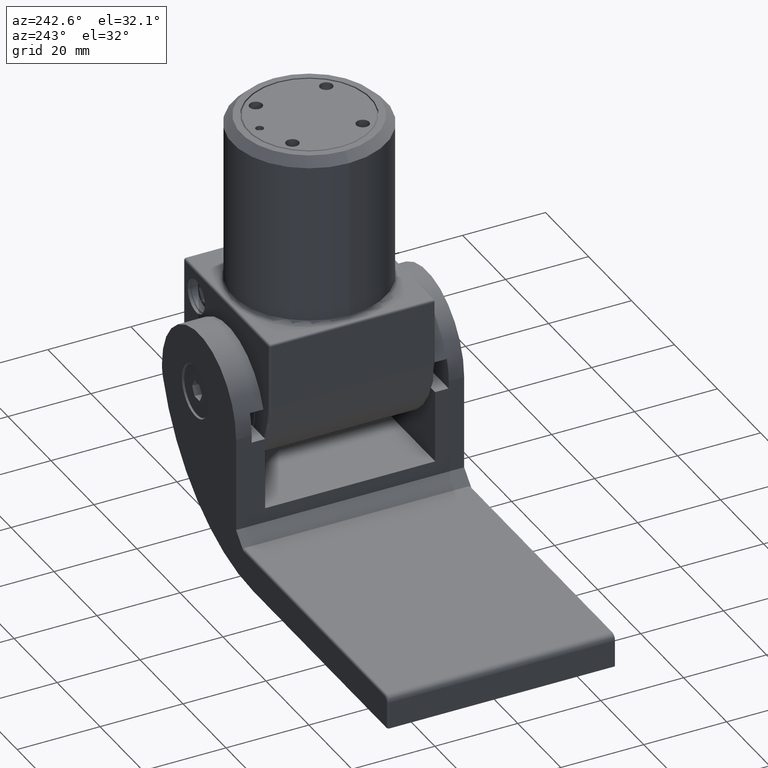
[diagram: clean part render]
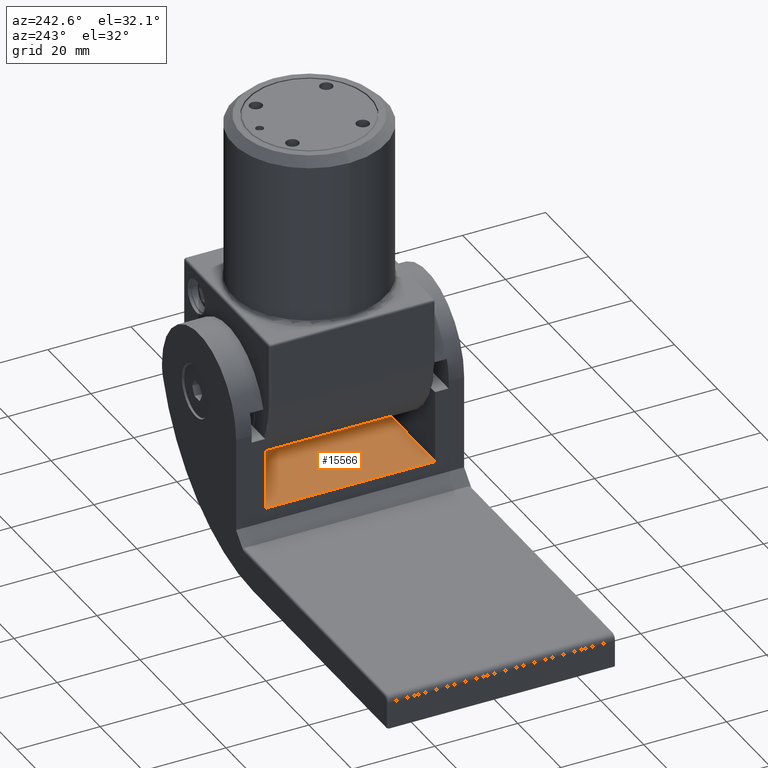
[diagram: same view with one face highlighted and labeled with its STEP entity id]
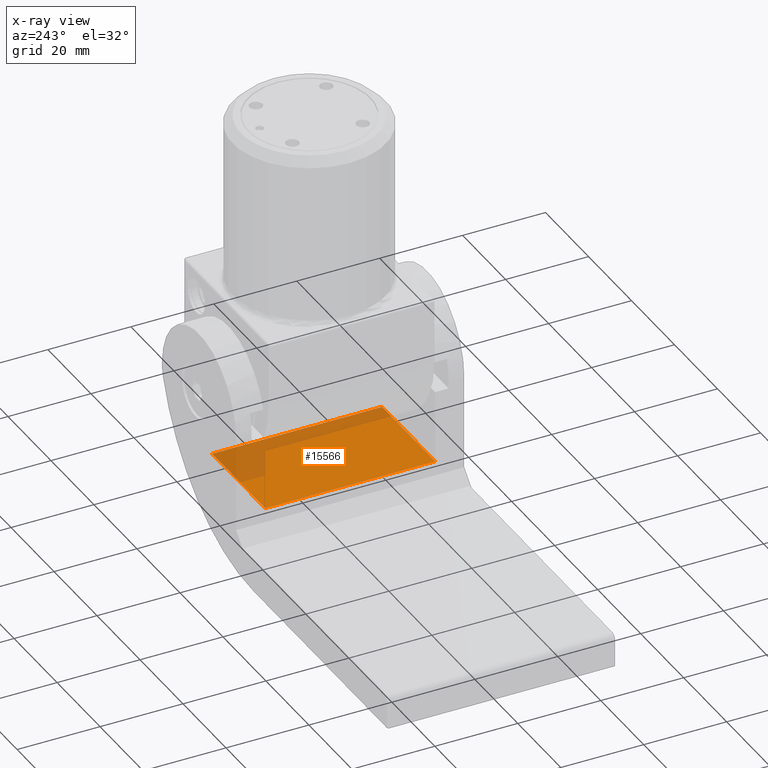
[diagram: x-ray of the same camera — body ghosted, the highlighted face saturated]
A machine part, auxiliary view. The second image highlights one B-rep face of the part: STEP entity #15566.
The next image is the same camera in x-ray: the body ghosted, the highlighted face saturated — about 24% of this face is hidden behind the body in this view.
In plain terms, the highlighted planar face has unit normal (0, 0, -1).
Its self-contained STEP definition (entity closure, byte-faithful):
#1584 = ORIENTED_EDGE ( 'NONE', *, *, #14227, .T. ) ;
#1925 = FACE_OUTER_BOUND ( 'NONE', #17604, .T. ) ;
#2265 = AXIS2_PLACEMENT_3D ( 'NONE', #6253, #2797, #10819 ) ;
#2797 = DIRECTION ( 'NONE',  ( 0.000000000000000000, 0.000000000000000000, -1.000000000000000000 ) ) ;
#3565 = CARTESIAN_POINT ( 'NONE',  ( 17.99999999999999289, -20.50000000000000000, -10.99999999999999645 ) ) ;
#3731 = VECTOR ( 'NONE', #6255, 1000.000000000000000 ) ;
#4432 = VERTEX_POINT ( 'NONE', #19042 ) ;
#4992 = EDGE_CURVE ( 'NONE', #4432, #8742, #18181, .T. ) ;
#5670 = VERTEX_POINT ( 'NONE', #16927 ) ;
#6253 = CARTESIAN_POINT ( 'NONE',  ( -52.49999999999999289, 27.50000000000000000, -11.00000000000000000 ) ) ;
#6255 = DIRECTION ( 'NONE',  ( -1.000000000000000000, 0.000000000000000000, 0.000000000000000000 ) ) ;
#6342 = ORIENTED_EDGE ( 'NONE', *, *, #4992, .T. ) ;
#8480 = CARTESIAN_POINT ( 'NONE',  ( 17.99999999999998934, 20.50000000000000000, -10.99999999999999645 ) ) ;
#8742 = VERTEX_POINT ( 'NONE', #14120 ) ;
#9300 = LINE ( 'NONE', #16878, #17564 ) ;
#9608 = EDGE_CURVE ( 'NONE', #5670, #8742, #9993, .T. ) ;
#9750 = LINE ( 'NONE', #15864, #3731 ) ;
#9993 = LINE ( 'NONE', #12334, #14771 ) ;
#10819 = DIRECTION ( 'NONE',  ( -1.000000000000000000, 0.000000000000000000, -0.000000000000000000 ) ) ;
#10986 = ORIENTED_EDGE ( 'NONE', *, *, #11037, .T. ) ;
#11037 = EDGE_CURVE ( 'NONE', #17155, #4432, #9300, .T. ) ;
#12196 = DIRECTION ( 'NONE',  ( -0.000000000000000000, -1.000000000000000000, -0.000000000000000000 ) ) ;
#12334 = CARTESIAN_POINT ( 'NONE',  ( 42.69546483921939029, 27.50000000000000000, -11.00000000000000000 ) ) ;
#14120 = CARTESIAN_POINT ( 'NONE',  ( 42.69546483921939739, -20.50000000000000000, -10.99999999999999645 ) ) ;
#14227 = EDGE_CURVE ( 'NONE', #5670, #17155, #9750, .T. ) ;
#14513 = ORIENTED_EDGE ( 'NONE', *, *, #9608, .F. ) ;
#14771 = VECTOR ( 'NONE', #12196, 1000.000000000000000 ) ;
#15566 = ADVANCED_FACE ( 'NONE', ( #1925 ), #15933, .F. ) ;
#15702 = DIRECTION ( 'NONE',  ( 8.462065736472229849E-17, -1.000000000000000000, 0.000000000000000000 ) ) ;
#15864 = CARTESIAN_POINT ( 'NONE',  ( 17.99999999999998934, 20.50000000000000000, -10.99999999999999645 ) ) ;
#15933 = PLANE ( 'NONE',  #2265 ) ;
#16419 = DIRECTION ( 'NONE',  ( 1.000000000000000000, 0.000000000000000000, 0.000000000000000000 ) ) ;
#16700 = VECTOR ( 'NONE', #16419, 1000.000000000000000 ) ;
#16878 = CARTESIAN_POINT ( 'NONE',  ( 17.99999999999998934, 20.50000000000000000, -10.99999999999999645 ) ) ;
#16927 = CARTESIAN_POINT ( 'NONE',  ( 42.69546483921939739, 20.50000000000000000, -10.99999999999999645 ) ) ;
#17155 = VERTEX_POINT ( 'NONE', #8480 ) ;
#17564 = VECTOR ( 'NONE', #15702, 1000.000000000000000 ) ;
#17604 = EDGE_LOOP ( 'NONE', ( #1584, #10986, #6342, #14513 ) ) ;
#18181 = LINE ( 'NONE', #3565, #16700 ) ;
#19042 = CARTESIAN_POINT ( 'NONE',  ( 17.99999999999999289, -20.50000000000000000, -10.99999999999999645 ) ) ;